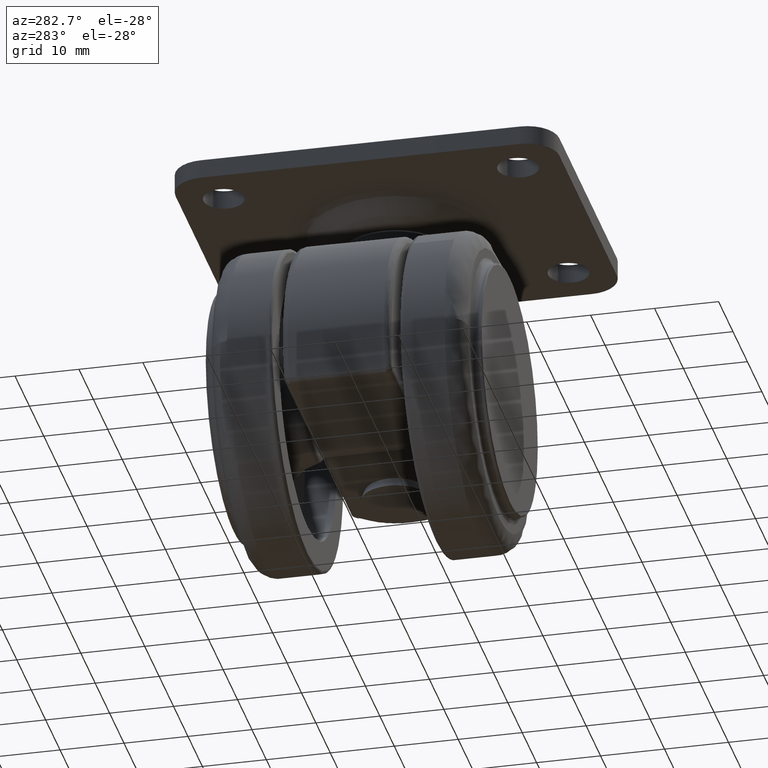
[diagram: clean part render]
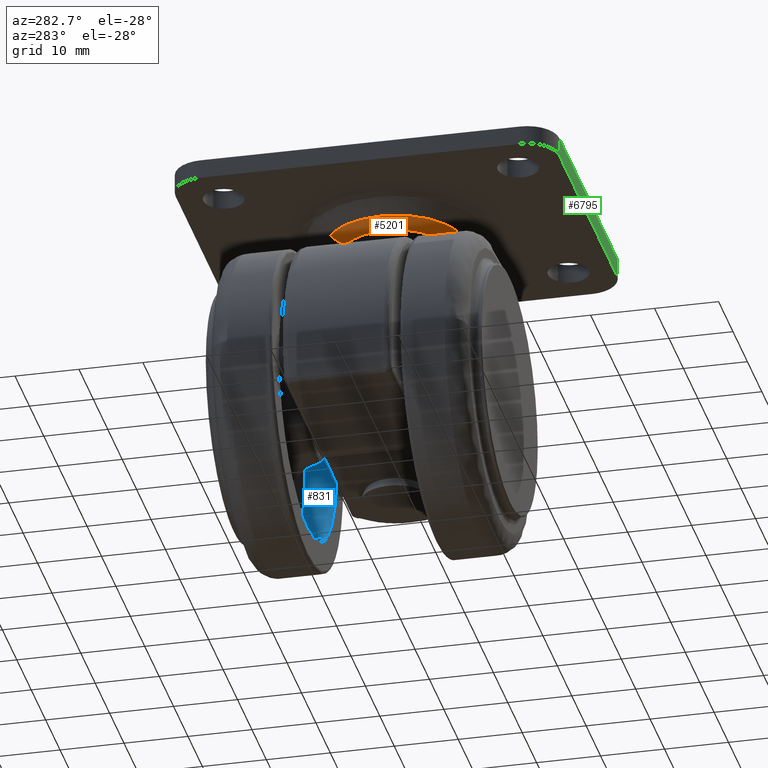
[diagram: same view with three faces highlighted in distinct colors, each labeled with its STEP entity id]
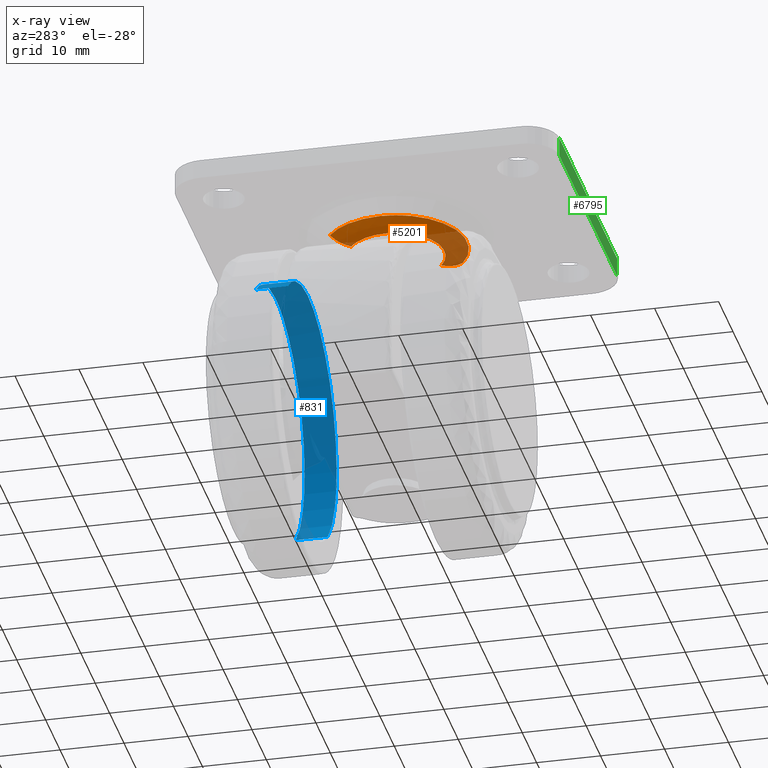
[diagram: x-ray of the same camera — body ghosted, the three highlighted faces saturated]
A machine part, auxiliary view with three faces highlighted in distinct colors.
The next image is the same camera in x-ray (body ghosted, the three faces saturated) — at least one of them is partly hidden behind the body in this view.
Their STEP definitions:

[orange] entity #5201 — the highlighted face is a freeform B-spline surface patch.
#5033=CARTESIAN_POINT('',(9.471791761033611,0.0,34.500000000000000));
#5034=VERTEX_POINT('',#5033);
#5035=CARTESIAN_POINT('',(12.498846780395450,6.034363179618399,34.500000000000000));
#5036=VERTEX_POINT('',#5035);
#5037=CARTESIAN_POINT('',(9.471791761033611,0.0,34.500000000000000));
#5038=CARTESIAN_POINT('',(9.471623833392115,0.619858510242665,34.499999999999993));
#5039=CARTESIAN_POINT('',(9.598627009086069,1.640696065054712,34.500000000000149));
#5040=CARTESIAN_POINT('',(10.021539904377869,2.887739012830782,34.499999999999822));
#5041=CARTESIAN_POINT('',(10.471910724093060,3.785474440802786,34.500000000000313));
#5042=CARTESIAN_POINT('',(11.197817112864380,4.882123024497445,34.499999999999432));
#5043=CARTESIAN_POINT('',(11.928747412351321,5.609445876935495,34.500000000000412));
#5044=CARTESIAN_POINT('',(12.498846780395450,6.034363179618399,34.500000000000000));
#5045=B_SPLINE_CURVE_WITH_KNOTS('',3,(#5037,#5038,#5039,#5040,#5041,#5042,#5043,#5044),.UNSPECIFIED.,.F.,.U.,(4,1,1,1,1,4),(0.000000022366479,1.859530043044146,3.062766840911862,3.937815431037053,4.867588695622127,7.000582249582254),.UNSPECIFIED.);
#5046=EDGE_CURVE('',#5034,#5036,#5045,.T.);
#5069=CARTESIAN_POINT('',(21.501153219604550,-6.034363179618403,34.500000000000000));
#5070=VERTEX_POINT('',#5069);
#5082=CARTESIAN_POINT('',(21.501153219604550,-6.034363179618403,34.500000000000000));
#5083=CARTESIAN_POINT('',(20.945210211082689,-6.449406293694186,34.500000000000078));
#5084=CARTESIAN_POINT('',(20.101129073722280,-6.912969059954119,34.499999999999957));
#5085=CARTESIAN_POINT('',(18.882341921107390,-7.306768673673589,34.500000000000028));
#5086=CARTESIAN_POINT('',(17.731629178880599,-7.535359811718879,34.500000000000057));
#5087=CARTESIAN_POINT('',(16.422136044402869,-7.554345684524034,34.499999999999801));
#5088=CARTESIAN_POINT('',(15.138460648926820,-7.320838210909931,34.500000000000277));
#5089=CARTESIAN_POINT('',(14.046357276314140,-6.956031852022417,34.500000000000142));
#5090=CARTESIAN_POINT('',(13.078085716375620,-6.459799959005102,34.499999999999822));
#5091=CARTESIAN_POINT('',(12.179419785951680,-5.811701469363116,34.500000000000348));
#5092=CARTESIAN_POINT('',(11.485479805588760,-5.153859747139379,34.499999999999879));
#5093=CARTESIAN_POINT('',(10.838349866447430,-4.364707481794869,34.500000000000078));
#5094=CARTESIAN_POINT('',(10.255888557684530,-3.420955128634351,34.499999999999623));
#5095=CARTESIAN_POINT('',(9.851736902881449,-2.434238191609238,34.500000000001343));
#5096=CARTESIAN_POINT('',(9.550785833311570,-1.279062190060042,34.499999999996753));
#5097=CARTESIAN_POINT('',(9.471706660056414,-0.520316785234196,34.500000000004022));
#5098=CARTESIAN_POINT('',(9.471791761033611,0.0,34.500000000000000));
#5099=B_SPLINE_CURVE_WITH_KNOTS('',3,(#5082,#5083,#5084,#5085,#5086,#5087,#5088,#5089,#5090,#5091,#5092,#5093,#5094,#5095,#5096,#5097,#5098),.UNSPECIFIED.,.F.,.U.,(4,1,1,1,1,1,1,1,1,1,1,1,1,1,4),(0.000000115930380,2.081233560092580,2.861726249236609,3.837313065342533,5.593393674408137,6.764091396331184,7.739681329920099,9.040423433571572,10.016038474740199,11.056661813118570,11.902177782326980,13.072893707114750,14.373693012909330,15.089118995173150,16.650048622900108),.UNSPECIFIED.);
#5100=EDGE_CURVE('',#5070,#5034,#5099,.T.);
#5105=CARTESIAN_POINT('',(23.969751588368336,-8.818466900534441,35.782642864346627));
#5106=CARTESIAN_POINT('',(23.844591664280703,-8.911826212611338,35.782642864346634));
#5107=CARTESIAN_POINT('',(14.711686103406624,-15.724244697536811,35.782642864346620));
#5108=CARTESIAN_POINT('',(7.993720702934906,-6.717965400471711,35.782642864346627));
#5109=CARTESIAN_POINT('',(1.275755302463193,2.288313896593368,35.782642864346620));
#5110=CARTESIAN_POINT('',(10.408660863331548,9.100732381514574,35.782642864346627));
#5111=CARTESIAN_POINT('',(10.533820787413591,9.194091693587298,35.782642864346627));
#5112=CARTESIAN_POINT('',(22.906155073918079,-7.472753134514961,34.435036152212845));
#5113=CARTESIAN_POINT('',(22.800094777316545,-7.551865649176268,34.435036152212838));
#5114=CARTESIAN_POINT('',(15.060886882448248,-13.324696931648868,34.435036152212852));
#5115=CARTESIAN_POINT('',(9.368094975399686,-5.692791907048555,34.435036152212845));
#5116=CARTESIAN_POINT('',(3.675303068351130,1.939113117551747,34.435036152212852));
#5117=CARTESIAN_POINT('',(11.414510963214573,7.711944400020740,34.435036152212838));
#5118=CARTESIAN_POINT('',(11.520571259811366,7.791056914678514,34.435036152212845));
#5119=CARTESIAN_POINT('',(21.554023422924232,-5.761970754644572,34.502906360166655));
#5120=CARTESIAN_POINT('',(21.472244148773662,-5.822971564867970,34.502906360166655));
#5121=CARTESIAN_POINT('',(15.504819726791892,-10.274193814867198,34.502906360166648));
#5122=CARTESIAN_POINT('',(11.115312955962345,-4.389506770829540,34.502906360166655));
#5123=CARTESIAN_POINT('',(6.725806185132804,1.495180273208108,34.502906360166648));
#5124=CARTESIAN_POINT('',(12.693230607110848,5.946402523204554,34.502906360166662));
#5125=CARTESIAN_POINT('',(12.775009881257752,6.007403333425225,34.502906360166655));
#5133=(BOUNDED_SURFACE()B_SPLINE_SURFACE(2,2,((#5105,#5112,#5119),(#5106,#5113,#5120),(#5107,#5114,#5121),(#5108,#5115,#5122),(#5109,#5116,#5123),(#5110,#5117,#5124),(#5111,#5118,#5125)),.UNSPECIFIED.,.F.,.F.,.U.)B_SPLINE_SURFACE_WITH_KNOTS((3,1,2,1,3),(3,3),(0.0,0.372323022470753,18.988474145338330,37.604625268205922,37.976948290659742),(0.0,4.227851864217692),.UNSPECIFIED.)GEOMETRIC_REPRESENTATION_ITEM()RATIONAL_B_SPLINE_SURFACE(((0.948429253666715,0.890852106817757,0.947315361871795),(0.942937819876797,0.885694046432878,0.941830377548737),(0.662874696600855,0.622632966813323,0.662096177082662),(0.937446386086879,0.880535986047998,0.936345393225679),(0.662874696600855,0.622632966813323,0.662096177082662),(0.942937819876548,0.885694046432643,0.941830377548488),(0.948429253666216,0.890852106817288,0.947315361871296)))REPRESENTATION_ITEM('')SURFACE());
#5134=ORIENTED_EDGE('',*,*,#5100,.F.);
#5135=CARTESIAN_POINT('',(23.629213184340440,-8.887295765728364,35.669664975874539));
#5136=VERTEX_POINT('',#5135);
#5137=CARTESIAN_POINT('',(23.629213184340440,-8.887295765728364,35.669664975874539));
#5138=CARTESIAN_POINT('',(23.428632360609669,-8.618391891940386,35.422429690544440));
#5139=CARTESIAN_POINT('',(22.955379803902652,-7.983937194769000,34.957746060197259));
#5140=CARTESIAN_POINT('',(22.224942804727320,-7.004694339031210,34.576316742777237));
#5141=CARTESIAN_POINT('',(21.714723901779720,-6.320681595787700,34.499989028174667));
#5142=CARTESIAN_POINT('',(21.501153219604550,-6.034363179618403,34.500000000000000));
#5143=B_SPLINE_CURVE_WITH_KNOTS('',3,(#5137,#5138,#5139,#5140,#5141,#5142),.UNSPECIFIED.,.F.,.U.,(4,1,1,4),(0.000000012861284,1.250216842143491,2.738563142365760,3.810176041604491),.UNSPECIFIED.);
#5144=EDGE_CURVE('',#5136,#5070,#5143,.T.);
#5145=ORIENTED_EDGE('',*,*,#5144,.F.);
#5146=CARTESIAN_POINT('',(12.757034767814330,-10.243424208219549,35.669664975877417));
#5147=VERTEX_POINT('',#5146);
#5148=CARTESIAN_POINT('',(23.629213184340440,-8.887295765728364,35.669664975874539));
#5149=CARTESIAN_POINT('',(23.150808265503080,-9.244186396517156,35.669664975874660));
#5150=CARTESIAN_POINT('',(22.110819205806070,-9.896373539011723,35.669664975874852));
#5151=CARTESIAN_POINT('',(20.590132074608981,-10.529648451097520,35.669664975875179));
#5152=CARTESIAN_POINT('',(19.056454024235730,-10.926611946020779,35.669664975875570));
#5153=CARTESIAN_POINT('',(17.453097778474849,-11.126651289976790,35.669664975876017));
#5154=CARTESIAN_POINT('',(15.267463267302571,-11.044917438051771,35.669664975876671));
#5155=CARTESIAN_POINT('',(13.666796408932750,-10.620633363629690,35.669664975877133));
#5156=CARTESIAN_POINT('',(12.757034767814330,-10.243424208219549,35.669664975877417));
#5157=B_SPLINE_CURVE_WITH_KNOTS('',3,(#5148,#5149,#5150,#5151,#5152,#5153,#5154,#5155,#5156),.UNSPECIFIED.,.F.,.U.,(4,1,1,1,1,1,4),(0.000000025019721,1.790584338363292,3.670721270508991,4.924145952474414,6.535646809449055,8.505314457365291,11.459792736904941),.UNSPECIFIED.);
#5158=EDGE_CURVE('',#5136,#5147,#5157,.T.);
#5159=ORIENTED_EDGE('',*,*,#5158,.T.);
#5160=CARTESIAN_POINT('',(5.912597532734515,0.0,35.669664975879790));
#5161=VERTEX_POINT('',#5160);
#5162=CARTESIAN_POINT('',(12.757034767814330,-10.243424208219549,35.669664975877417));
#5163=CARTESIAN_POINT('',(12.191342564759690,-10.009156095833710,35.669664975877517));
#5164=CARTESIAN_POINT('',(11.220329729689711,-9.509040116425577,35.669664975877943));
#5165=CARTESIAN_POINT('',(9.752877876708915,-8.455295114704269,35.669664975878128));
#5166=CARTESIAN_POINT('',(8.663783192241226,-7.369534525856927,35.669664975878689));
#5167=CARTESIAN_POINT('',(7.682127389674746,-6.062659885017745,35.669664975878973));
#5168=CARTESIAN_POINT('',(6.851284668837433,-4.611840949019181,35.669664975879193));
#5169=CARTESIAN_POINT('',(6.109020599312345,-2.517081746064326,35.669664975878923));
#5170=CARTESIAN_POINT('',(5.912381543453198,-0.884429140133169,35.669664975880707));
#5171=CARTESIAN_POINT('',(5.912597532734515,0.0,35.669664975879790));
#5172=B_SPLINE_CURVE_WITH_KNOTS('',3,(#5162,#5163,#5164,#5165,#5166,#5167,#5168,#5169,#5170,#5171),.UNSPECIFIED.,.F.,.U.,(4,1,1,1,1,1,1,4),(0.000000025456403,1.836845958476298,3.265521549733155,5.408532083859846,6.429006984943553,8.163791704931521,10.408853310229620,13.062084404877019),.UNSPECIFIED.);
#5173=EDGE_CURVE('',#5147,#5161,#5172,.T.);
#5174=ORIENTED_EDGE('',*,*,#5173,.T.);
#5175=CARTESIAN_POINT('',(10.370786815659560,8.887295765728361,35.669664975874539));
#5176=VERTEX_POINT('',#5175);
#5177=CARTESIAN_POINT('',(5.912597532734515,0.0,35.669664975879790));
#5178=CARTESIAN_POINT('',(5.912525903851577,0.724944238941945,35.669664975879357));
#5179=CARTESIAN_POINT('',(6.060530706924395,2.228522299142817,35.669664975878781));
#5180=CARTESIAN_POINT('',(6.669814976436364,4.187889675990069,35.669664975877772));
#5181=CARTESIAN_POINT('',(7.452348921980793,5.692588052958946,35.669664975876628));
#5182=CARTESIAN_POINT('',(8.260389812277424,6.866189869901481,35.669664975876138));
#5183=CARTESIAN_POINT('',(9.186217681460986,7.915706264876656,35.669664975874859));
#5184=CARTESIAN_POINT('',(9.961861760919007,8.582293802849776,35.669664975875577));
#5185=CARTESIAN_POINT('',(10.370786815659560,8.887295765728361,35.669664975874539));
#5186=B_SPLINE_CURVE_WITH_KNOTS('',3,(#5177,#5178,#5179,#5180,#5181,#5182,#5183,#5184,#5185),.UNSPECIFIED.,.F.,.U.,(4,1,1,1,1,1,4),(0.000000019737318,2.174832010265458,4.510780659941456,6.121751308893316,7.249446178069860,8.779894165005866,10.310324906314850),.UNSPECIFIED.);
#5187=EDGE_CURVE('',#5161,#5176,#5186,.T.);
#5188=ORIENTED_EDGE('',*,*,#5187,.T.);
#5189=CARTESIAN_POINT('',(10.370786815659560,8.887295765728361,35.669664975874539));
#5190=CARTESIAN_POINT('',(10.600005149157511,8.579999700858533,35.387048166289077));
#5191=CARTESIAN_POINT('',(11.015807107834030,8.022564770953403,34.992801791242307));
#5192=CARTESIAN_POINT('',(11.739506498516100,7.052354528554617,34.595052715180799));
#5193=CARTESIAN_POINT('',(12.214073786212211,6.416137268794706,34.499880932451227));
#5194=CARTESIAN_POINT('',(12.498846780395450,6.034363179618399,34.500000000000000));
#5195=B_SPLINE_CURVE_WITH_KNOTS('',3,(#5189,#5190,#5191,#5192,#5193,#5194),.UNSPECIFIED.,.F.,.U.,(4,1,1,4),(0.000000012862988,1.428821100142725,2.381354954325200,3.810176041604462),.UNSPECIFIED.);
#5196=EDGE_CURVE('',#5176,#5036,#5195,.T.);
#5197=ORIENTED_EDGE('',*,*,#5196,.T.);
#5198=ORIENTED_EDGE('',*,*,#5046,.F.);
#5199=EDGE_LOOP('',(#5134,#5145,#5159,#5174,#5188,#5197,#5198));
#5200=FACE_OUTER_BOUND('',#5199,.T.);
#5201=ADVANCED_FACE('',(#5200),#5133,.T.);

[blue] entity #831 — the highlighted face is a freeform B-spline surface patch.
#575=CARTESIAN_POINT('',(1.836910E-015,15.0,20.0));
#576=VERTEX_POINT('',#575);
#577=CARTESIAN_POINT('',(-13.767091280203500,14.999999999999080,14.507487151277990));
#578=VERTEX_POINT('',#577);
#579=CARTESIAN_POINT('',(1.836910E-015,15.0,20.0));
#580=CARTESIAN_POINT('',(-1.265378856766342,14.999999999999959,20.000161797720050));
#581=CARTESIAN_POINT('',(-3.202902388898094,14.999999999999741,19.815460477699041));
#582=CARTESIAN_POINT('',(-5.933283256881445,14.999999999999680,19.146632942335408));
#583=CARTESIAN_POINT('',(-7.827611496555446,14.999999999999460,18.442498843417230));
#584=CARTESIAN_POINT('',(-9.851811937623838,14.999999999999250,17.447875587426470));
#585=CARTESIAN_POINT('',(-11.765284759583480,14.999999999999440,16.246844196306039));
#586=CARTESIAN_POINT('',(-13.136082447922901,14.999999999999050,15.106333801668960));
#587=CARTESIAN_POINT('',(-13.767091280203500,14.999999999999080,14.507487151277990));
#588=B_SPLINE_CURVE_WITH_KNOTS('',3,(#579,#580,#581,#582,#583,#584,#585,#586,#587),.UNSPECIFIED.,.F.,.U.,(4,1,1,1,1,1,4),(0.000000010536185,3.796096665711751,5.812781870646880,8.422586545498147,9.846119240936385,12.574575490731929,15.184386631227360),.UNSPECIFIED.);
#589=EDGE_CURVE('',#576,#578,#588,.T.);
#625=CARTESIAN_POINT('',(13.767091280203569,14.999999999999080,-14.507487151278060));
#626=VERTEX_POINT('',#625);
#638=CARTESIAN_POINT('',(19.999999999999950,15.0,0.000001425758414));
#639=VERTEX_POINT('',#638);
#640=CARTESIAN_POINT('',(13.767091280203569,14.999999999999080,-14.507487151278060));
#641=CARTESIAN_POINT('',(14.625701237634949,14.999999999999190,-13.692866208858900));
#642=CARTESIAN_POINT('',(16.029110684169019,14.999999999999160,-12.101478490606400));
#643=CARTESIAN_POINT('',(17.660785992543278,14.999999999999430,-9.523646821370514));
#644=CARTESIAN_POINT('',(18.918225029409690,14.999999999999501,-6.743996383486576));
#645=CARTESIAN_POINT('',(19.789324129115371,14.999999999999931,-3.550639147469855));
#646=CARTESIAN_POINT('',(20.000093919932549,14.999999999999799,-1.183552761124988));
#647=CARTESIAN_POINT('',(19.999999999999950,15.0,0.000001425758414));
#648=B_SPLINE_CURVE_WITH_KNOTS('',3,(#640,#641,#642,#643,#644,#645,#646,#647),.UNSPECIFIED.,.F.,.U.,(4,1,1,1,1,4),(0.000000010735402,3.550660208862215,6.340468875775615,9.130262994594119,12.680932232371269,16.231590497604468),.UNSPECIFIED.);
#649=EDGE_CURVE('',#626,#639,#648,.T.);
#651=CARTESIAN_POINT('',(19.999999999999950,15.0,0.000001425758414));
#652=CARTESIAN_POINT('',(20.000277482294010,15.000000000000011,1.431741768943055));
#653=CARTESIAN_POINT('',(19.788226347228619,14.999999999999989,3.395120938284493));
#654=CARTESIAN_POINT('',(19.076618589609058,15.000000000000041,6.128800159941577));
#655=CARTESIAN_POINT('',(18.169519233080830,15.000000000000060,8.546705347431763));
#656=CARTESIAN_POINT('',(16.760237752523160,14.999999999999860,11.052357027977321));
#657=CARTESIAN_POINT('',(15.121212927929321,15.000000000000140,13.152361621853499));
#658=CARTESIAN_POINT('',(13.376514027574871,15.000000000000041,14.940500489897479));
#659=CARTESIAN_POINT('',(11.417850379691330,14.999999999999950,16.498273983391169));
#660=CARTESIAN_POINT('',(9.195106539704028,15.000000000000041,17.812019392359119));
#661=CARTESIAN_POINT('',(6.947872574139028,14.999999999999950,18.808165796735100));
#662=CARTESIAN_POINT('',(4.907699644145493,15.000000000000140,19.427035023793710));
#663=CARTESIAN_POINT('',(2.536153110255646,14.999999999999631,19.883655454387799));
#664=CARTESIAN_POINT('',(1.022651151036719,15.000000000000529,20.000057849388799));
#665=CARTESIAN_POINT('',(1.836910E-015,15.0,20.0));
#666=B_SPLINE_CURVE_WITH_KNOTS('',3,(#651,#652,#653,#654,#655,#656,#657,#658,#659,#660,#661,#662,#663,#664,#665),.UNSPECIFIED.,.F.,.U.,(4,1,1,1,1,1,1,1,1,1,1,1,4),(0.000000040040561,4.295138123894013,5.890491696841028,8.467589977048192,12.026445048562250,14.480829194510790,16.444269119969249,19.512265219944862,21.966631659702671,24.175577093028910,26.875398887319999,28.348029181548860,31.415975014786049),.UNSPECIFIED.);
#667=EDGE_CURVE('',#639,#576,#666,.T.);
#697=CARTESIAN_POINT('',(-13.767091280077089,10.0,14.507487151397950));
#698=VERTEX_POINT('',#697);
#699=CARTESIAN_POINT('',(-13.767091280203500,14.999999999999080,14.507487151277990));
#700=CARTESIAN_POINT('',(-13.767091280077089,10.0,14.507487151397950));
#701=QUASI_UNIFORM_CURVE('',1,(#699,#700),.UNSPECIFIED.,.F.,.U.);
#702=EDGE_CURVE('',#578,#698,#701,.T.);
#738=CARTESIAN_POINT('',(13.767091280077160,9.999999999999998,-14.507487151398021));
#739=VERTEX_POINT('',#738);
#751=CARTESIAN_POINT('',(13.767091280203569,14.999999999999080,-14.507487151278060));
#752=CARTESIAN_POINT('',(13.767091280077160,9.999999999999998,-14.507487151398021));
#753=QUASI_UNIFORM_CURVE('',1,(#751,#752),.UNSPECIFIED.,.F.,.U.);
#754=EDGE_CURVE('',#626,#739,#753,.T.);
#761=CARTESIAN_POINT('',(13.767091513875080,15.125000000000000,-14.507487420245750));
#762=CARTESIAN_POINT('',(28.274578934120825,15.124999999999998,-0.740395906370672));
#763=CARTESIAN_POINT('',(14.507487420245750,15.125000000000000,13.767091513875080));
#764=CARTESIAN_POINT('',(0.740395906370674,15.124999999999998,28.274578934120825));
#765=CARTESIAN_POINT('',(-13.767091513875069,15.125000000000000,14.507487420245750));
#766=CARTESIAN_POINT('',(13.767091513875080,9.871874999999998,-14.507487420245750));
#767=CARTESIAN_POINT('',(28.274578934120825,9.871874999999996,-0.740395906370672));
#768=CARTESIAN_POINT('',(14.507487420245750,9.871874999999998,13.767091513875080));
#769=CARTESIAN_POINT('',(0.740395906370673,9.871874999999999,28.274578934120825));
#770=CARTESIAN_POINT('',(-13.767091513875069,9.871875000000001,14.507487420245750));
#778=(BOUNDED_SURFACE()B_SPLINE_SURFACE(2,1,((#761,#766),(#762,#767),(#763,#768),(#764,#769),(#765,#770)),.UNSPECIFIED.,.F.,.F.,.U.)B_SPLINE_SURFACE_WITH_KNOTS((3,2,3),(2,2),(0.0,33.137084989847587,66.274169979695174),(0.0,5.253125000000003),.UNSPECIFIED.)GEOMETRIC_REPRESENTATION_ITEM()RATIONAL_B_SPLINE_SURFACE(((1.0,1.0),(0.707106781186548,0.707106781186548),(1.0,1.0),(0.707106781186548,0.707106781186548),(1.0,1.0)))REPRESENTATION_ITEM('')SURFACE());
#779=ORIENTED_EDGE('',*,*,#589,.F.);
#780=ORIENTED_EDGE('',*,*,#667,.F.);
#781=ORIENTED_EDGE('',*,*,#649,.F.);
#782=ORIENTED_EDGE('',*,*,#754,.T.);
#783=CARTESIAN_POINT('',(19.999999999999950,9.999999999999998,0.000001425758414));
#784=VERTEX_POINT('',#783);
#785=CARTESIAN_POINT('',(13.767091280077160,9.999999999999998,-14.507487151398021));
#786=CARTESIAN_POINT('',(14.380335725195989,9.999999999999988,-13.925573954009010));
#787=CARTESIAN_POINT('',(15.590503571981170,10.000000000000020,-12.621740823984791));
#788=CARTESIAN_POINT('',(17.032962144549519,9.999999999999986,-10.579872719522729));
#789=CARTESIAN_POINT('',(18.091506464263329,10.000000000000020,-8.601745180668953));
#790=CARTESIAN_POINT('',(19.080357975626001,10.0,-6.217672691418567));
#791=CARTESIAN_POINT('',(19.815394287076440,10.000000000000110,-3.381579783161172));
#792=CARTESIAN_POINT('',(20.000048168468648,9.999999999999808,-1.056738938403343));
#793=CARTESIAN_POINT('',(19.999999999999950,9.999999999999998,0.000001425758414));
#794=B_SPLINE_CURVE_WITH_KNOTS('',3,(#785,#786,#787,#788,#789,#790,#791,#792,#793),.UNSPECIFIED.,.F.,.U.,(4,1,1,1,1,1,4),(0.000000010737342,2.536185618480271,5.325992614325916,7.481754004612789,9.257075205131400,13.061359952400670,16.231590497778740),.UNSPECIFIED.);
#795=EDGE_CURVE('',#739,#784,#794,.T.);
#796=ORIENTED_EDGE('',*,*,#795,.T.);
#797=CARTESIAN_POINT('',(1.224606E-015,10.0,20.0));
#798=VERTEX_POINT('',#797);
#799=CARTESIAN_POINT('',(19.999999999999950,9.999999999999998,0.000001425758414));
#800=CARTESIAN_POINT('',(20.000014073146279,10.000000000000020,0.777216203600633));
#801=CARTESIAN_POINT('',(19.902142334788469,9.999999999999925,2.454369535971294));
#802=CARTESIAN_POINT('',(19.444369539227061,10.000000000000121,4.913079280022330));
#803=CARTESIAN_POINT('',(18.699955181742919,9.999999999999956,7.213649068346074));
#804=CARTESIAN_POINT('',(17.564844065481811,9.999999999999993,9.712360551350821));
#805=CARTESIAN_POINT('',(15.945001264491051,10.000000000000030,12.236036145572310));
#806=CARTESIAN_POINT('',(13.864083433624421,10.000000000000030,14.503682078916979));
#807=CARTESIAN_POINT('',(11.778819718779481,9.999999999999996,16.225732708186570));
#808=CARTESIAN_POINT('',(9.946914281022465,10.0,17.393647807795720));
#809=CARTESIAN_POINT('',(7.932597316765928,10.000000000000011,18.399840242177561));
#810=CARTESIAN_POINT('',(5.745025101438444,9.999999999999945,19.220668871596349));
#811=CARTESIAN_POINT('',(2.986124158336749,10.000000000000149,19.849081532750919));
#812=CARTESIAN_POINT('',(1.022650070135567,9.999999999999949,20.000053365725648));
#813=CARTESIAN_POINT('',(1.224606E-015,10.0,20.0));
#814=B_SPLINE_CURVE_WITH_KNOTS('',3,(#799,#800,#801,#802,#803,#804,#805,#806,#807,#808,#809,#810,#811,#812,#813),.UNSPECIFIED.,.F.,.U.,(4,1,1,1,1,1,1,1,1,1,1,1,4),(0.000000040040561,2.331648751670041,5.031464336772611,7.485836396990283,9.572055531809642,13.253616945216130,16.444269119969249,18.775933358008540,21.353043045909661,22.948385446381099,25.525488141483240,28.348029181548860,31.415975014786049),.UNSPECIFIED.);
#815=EDGE_CURVE('',#784,#798,#814,.T.);
#816=ORIENTED_EDGE('',*,*,#815,.T.);
#817=CARTESIAN_POINT('',(1.224606E-015,10.0,20.0));
#818=CARTESIAN_POINT('',(-1.463110098194566,10.0,20.000301009104000));
#819=CARTESIAN_POINT('',(-3.479654857055367,10.000000000000020,19.777678103994941));
#820=CARTESIAN_POINT('',(-6.309146835133742,9.999999999999984,19.021923311855279));
#821=CARTESIAN_POINT('',(-8.858260648371568,9.999999999999959,18.031348003180248));
#822=CARTESIAN_POINT('',(-11.491174493340750,10.000000000000121,16.475017851835041));
#823=CARTESIAN_POINT('',(-13.136074291462499,9.999999999999835,15.106321683209650));
#824=CARTESIAN_POINT('',(-13.767091280077089,10.0,14.507487151397950));
#825=B_SPLINE_CURVE_WITH_KNOTS('',3,(#817,#818,#819,#820,#821,#822,#823,#824),.UNSPECIFIED.,.F.,.U.,(4,1,1,1,1,4),(0.000000010536594,4.389236839795931,6.050034560561578,8.778471104316717,12.574575490587570,15.184386631053091),.UNSPECIFIED.);
#826=EDGE_CURVE('',#798,#698,#825,.T.);
#827=ORIENTED_EDGE('',*,*,#826,.T.);
#828=ORIENTED_EDGE('',*,*,#702,.F.);
#829=EDGE_LOOP('',(#779,#780,#781,#782,#796,#816,#827,#828));
#830=FACE_OUTER_BOUND('',#829,.T.);
#831=ADVANCED_FACE('',(#830),#778,.F.);

[green] entity #6795 — the highlighted face is a freeform B-spline surface patch.
#6597=CARTESIAN_POINT('',(37.0,-30.0,38.0));
#6598=VERTEX_POINT('',#6597);
#6613=CARTESIAN_POINT('',(-2.999999999995455,-30.0,38.0));
#6614=VERTEX_POINT('',#6613);
#6615=CARTESIAN_POINT('',(-2.999999999995455,-30.0,38.0));
#6616=CARTESIAN_POINT('',(37.0,-30.0,38.0));
#6617=QUASI_UNIFORM_CURVE('',1,(#6615,#6616),.UNSPECIFIED.,.F.,.U.);
#6618=EDGE_CURVE('',#6614,#6598,#6617,.T.);
#6748=CARTESIAN_POINT('',(37.0,-30.0,41.0));
#6749=VERTEX_POINT('',#6748);
#6764=CARTESIAN_POINT('',(37.0,-30.0,38.0));
#6765=CARTESIAN_POINT('',(37.0,-30.0,41.0));
#6766=QUASI_UNIFORM_CURVE('',1,(#6764,#6765),.UNSPECIFIED.,.F.,.U.);
#6767=EDGE_CURVE('',#6598,#6749,#6766,.T.);
#6774=CARTESIAN_POINT('',(-4.997999922467468,-30.0,41.149849994185423));
#6775=CARTESIAN_POINT('',(-4.997999922467468,-30.0,37.850149925348319));
#6776=CARTESIAN_POINT('',(38.998000995355632,-30.0,41.149849994185431));
#6777=CARTESIAN_POINT('',(38.998000995355632,-30.0,37.850149925348319));
#6778=B_SPLINE_SURFACE_WITH_KNOTS('',1,1,((#6774,#6776),(#6775,#6777)),.UNSPECIFIED.,.F.,.F.,.U.,(2,2),(2,2),(0.0,3.299700068837112),(0.0,43.996000917823103),.UNSPECIFIED.);
#6779=CARTESIAN_POINT('',(-2.999999999995455,-30.0,41.0));
#6780=VERTEX_POINT('',#6779);
#6781=CARTESIAN_POINT('',(-2.999999999995455,-30.0,41.0));
#6782=CARTESIAN_POINT('',(37.0,-30.0,41.0));
#6783=QUASI_UNIFORM_CURVE('',1,(#6781,#6782),.UNSPECIFIED.,.F.,.U.);
#6784=EDGE_CURVE('',#6780,#6749,#6783,.T.);
#6785=ORIENTED_EDGE('',*,*,#6784,.F.);
#6786=CARTESIAN_POINT('',(-2.999999999995455,-30.0,38.0));
#6787=CARTESIAN_POINT('',(-2.999999999995455,-30.0,41.0));
#6788=QUASI_UNIFORM_CURVE('',1,(#6786,#6787),.UNSPECIFIED.,.F.,.U.);
#6789=EDGE_CURVE('',#6614,#6780,#6788,.T.);
#6790=ORIENTED_EDGE('',*,*,#6789,.F.);
#6791=ORIENTED_EDGE('',*,*,#6618,.T.);
#6792=ORIENTED_EDGE('',*,*,#6767,.T.);
#6793=EDGE_LOOP('',(#6785,#6790,#6791,#6792));
#6794=FACE_OUTER_BOUND('',#6793,.T.);
#6795=ADVANCED_FACE('',(#6794),#6778,.T.);